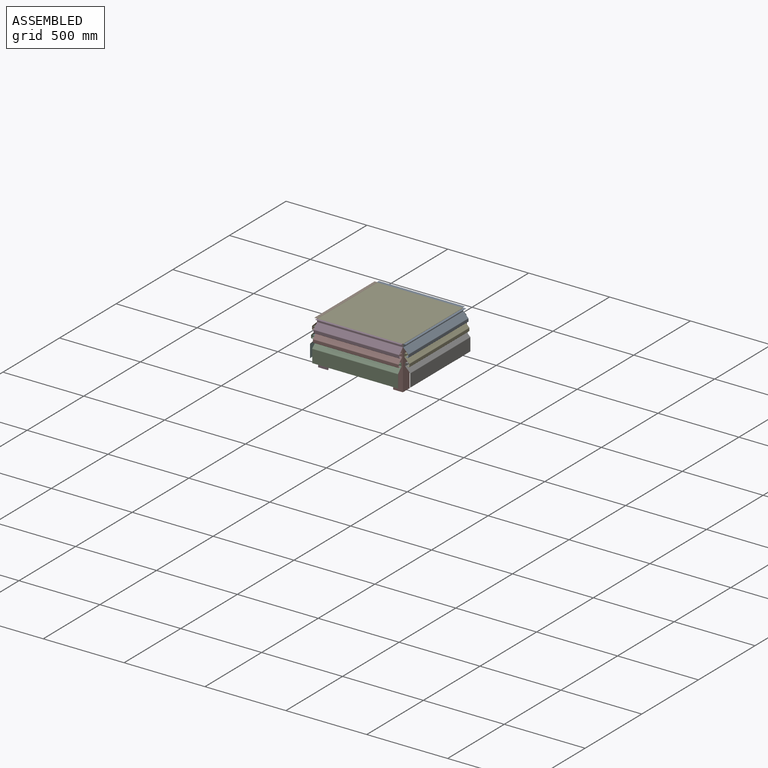
[diagram: assembled view]
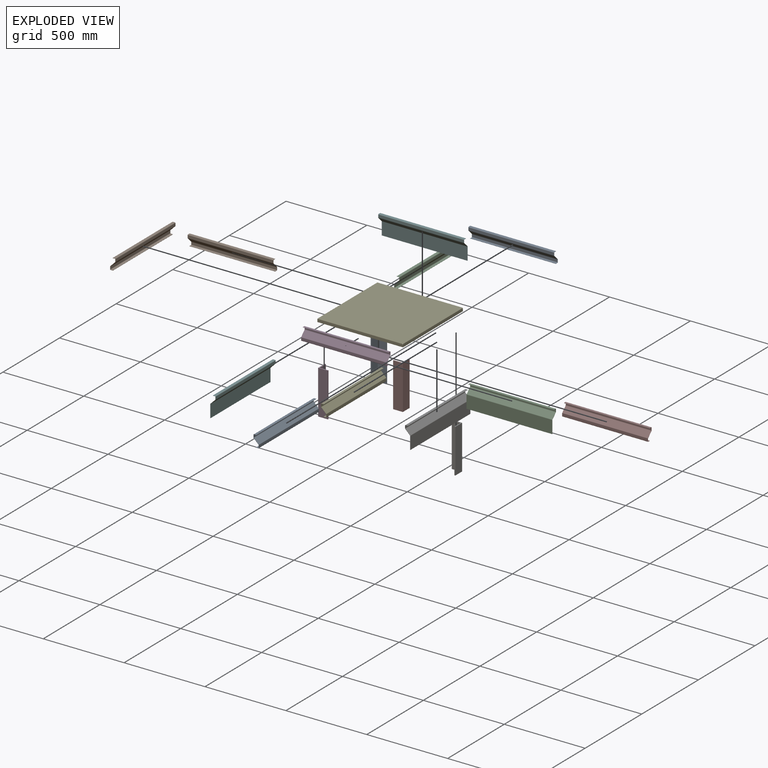
[diagram: exploded view]
GUIDED TOUR — MATED ASSEMBLY (Onshape document 658f09e600768cc6bc84b2b8, AutoMate assembly 658f09e600768cc6bc84b2b8_647c08d7fecc68a0881a63f9_3ef3a8aac3f7b8f3e4b5d0a6_default)

This assembly has 17 components, labeled P0..P16 below (a component is one placed occurrence of a part; the same part can appear more than once), held together by 14 mates. A mate is a constraint between two components; its type names the relative motion it leaves free:
  FASTENED — locks the two components together rigidly (no relative motion).
Axis/direction vectors are unit vectors and 'through' points are millimeter coordinates, both in the assembly's world frame.

MATES
  1. FASTENED "Fastened 6": P16 <-> P4, direction (0.000, 0.000, 1.000) through (581.29, -165.17, 362.12) mm
  2. FASTENED "Fastened 3": P11 <-> P4, direction (0.000, 0.000, 1.000) through (581.29, -688.67, 362.12) mm
  3. FASTENED "Fastened 2": P14 <-> P12, direction (0.000, 1.000, 0.000) through (1122.48, -426.55, 241.18) mm
  4. FASTENED "Fastened 1": P0 <-> P9, direction (1.000, 0.000, 0.000) through (840.89, -146.36, 292.42) mm
  5. FASTENED "Fastened 2": P5 <-> P10, direction (0.000, -1.000, 0.000) through (564.47, -426.92, 241.56) mm
  6. FASTENED "Fastened 7": P4 <-> P1, direction (-1.000, 0.000, 0.000) through (578.04, -426.92, 360.12) mm
  7. FASTENED "Fastened 2": P2 <-> P15, direction (1.000, 0.000, 0.000) through (843.04, -705.49, 241.56) mm
  8. FASTENED "Fastened 4": P7 <-> P4, direction (0.000, 0.000, 1.000) through (1104.79, -688.67, 362.12) mm
  9. FASTENED "Fastened 1": P8 <-> P12, direction (0.000, -1.000, 0.000) through (1124.61, -426.55, 292.05) mm
  10. FASTENED "Fastened 2": P13 <-> P9, direction (-1.000, 0.000, 0.000) through (840.89, -148.50, 241.56) mm
  11. FASTENED "Fastened 8": P3 <-> P4, direction (0.000, 1.000, 0.000) through (843.04, -691.92, 360.12) mm
  12. FASTENED "Fastened 1": P3 <-> P15, direction (-1.000, 0.000, 0.000) through (843.04, -707.63, 292.43) mm
  13. FASTENED "Fastened 5": P6 <-> P4, direction (0.000, 0.000, 1.000) through (1104.79, -165.17, 362.12) mm
  14. FASTENED "Fastened 1": P1 <-> P10, direction (0.000, 1.000, 0.000) through (562.33, -426.92, 292.43) mm

ASSEMBLY ORDER
  1. P4 — the base component [order verified]
  2. P7 [order verified]
  3. P16 [order verified]
  4. P11 [order verified]
  5. P6 [order verified]
  6. P13 [order verified]
  7. P9 [order verified]
  8. P0 [order verified]
  9. P14 [order verified]
  10. P12 [order verified]
  11. P8 [order verified]
  12. P2 [order verified]
  13. P15 [order verified]
  14. P3 [order verified]
  15. P5 [order verified]
  16. P10 [order verified]
  17. P1 [order verified]
Order-tag legend:
  [order verified] — this step's position reverses a verified removal order: the component was checked to insert without passing through the ones already placed.

Of the 17 components, 4 carry the full construction recipe — the FeatureScript program that regenerates the part's solid from scratch; the rest are supplied as boundary geometry only.
Because this assembly has more than 12 components, the tour below covers the 12 most significant ones individually (every recipe-attached component first, then the largest by part volume), in assembly order; the remaining 5 are summarized together in a grouped section at the end.
Each toured component is shown spotlighted twice — in the assembled view, then in the exploded view, where a leader line traces a displaced component back to its assembled socket (saturated green if recipe-attached, orange if geometry-only; every other component desaturated gray) — followed by its recipe or geometry summary and the mates that hold it.
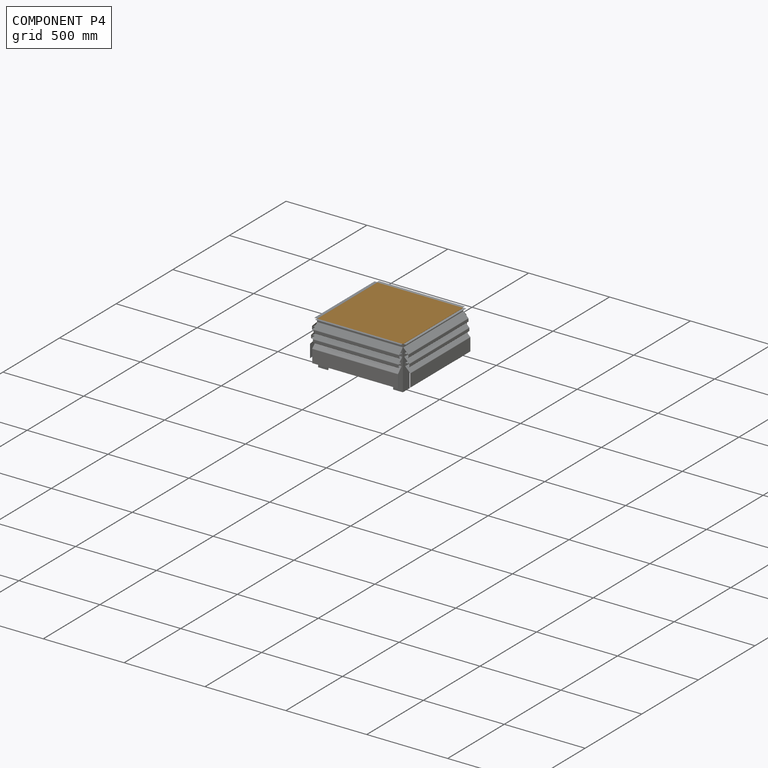
[diagram: component P4 — assembled]
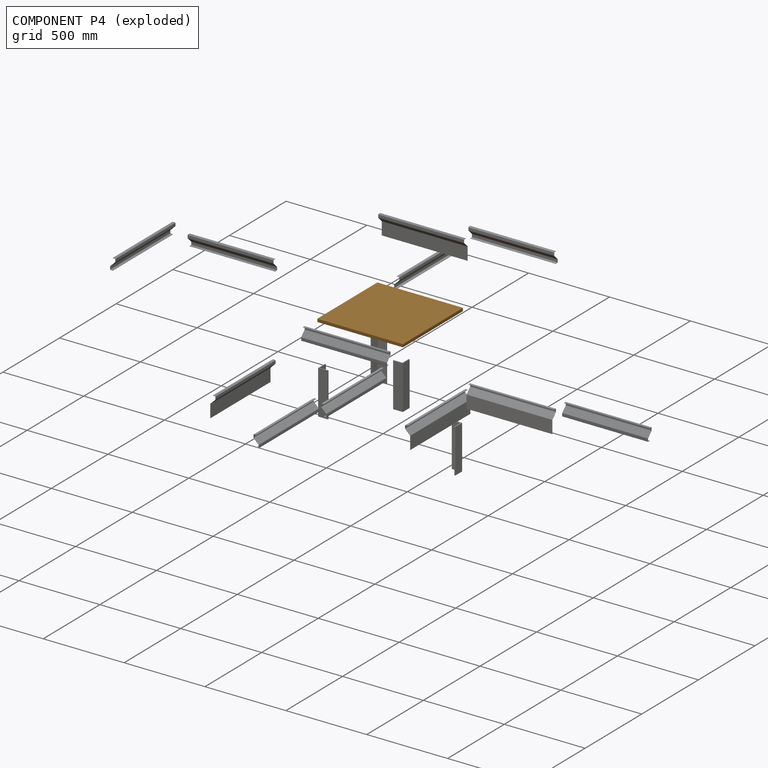
[diagram: component P4 — exploded]
COMPONENT P4 — geometry summary (no construction recipe available for this part):
  bounding box: 530.0 x 530.0 x 20.0 mm
  B-rep topology: 1 solid, 46 faces, 200 edges
  volume: 397533 mm^3 (7% of its bounding box)
  symmetry: 4-fold rotationally symmetric about the z axis; mirror-symmetric across its x mid-plane, y mid-plane
Held by: FASTENED mate "Fastened 6" to P16; FASTENED mate "Fastened 3" to P11; FASTENED mate "Fastened 7" to P1; FASTENED mate "Fastened 4" to P7; FASTENED mate "Fastened 8" to P3; FASTENED mate "Fastened 5" to P6.
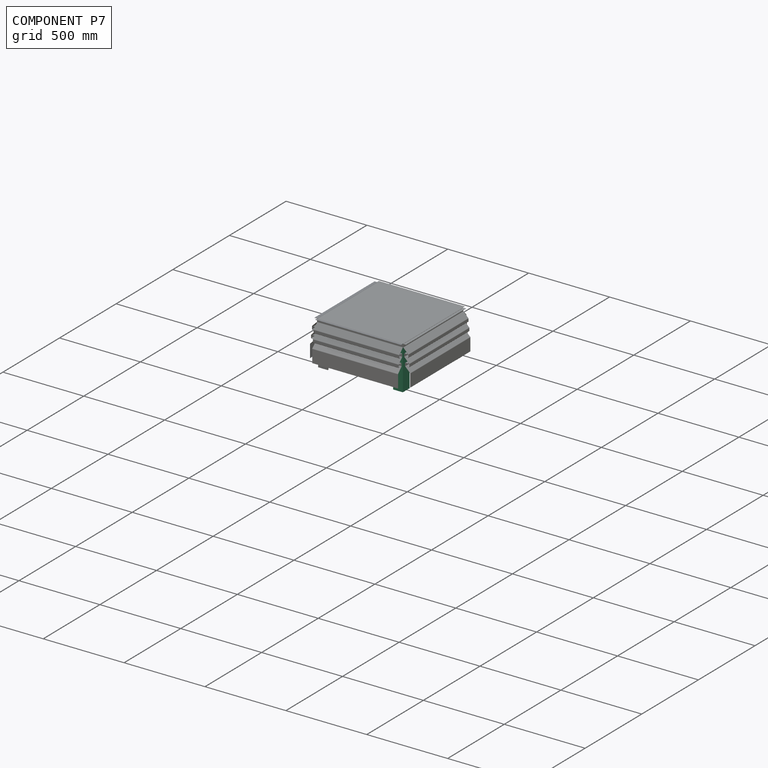
[diagram: component P7 — assembled]
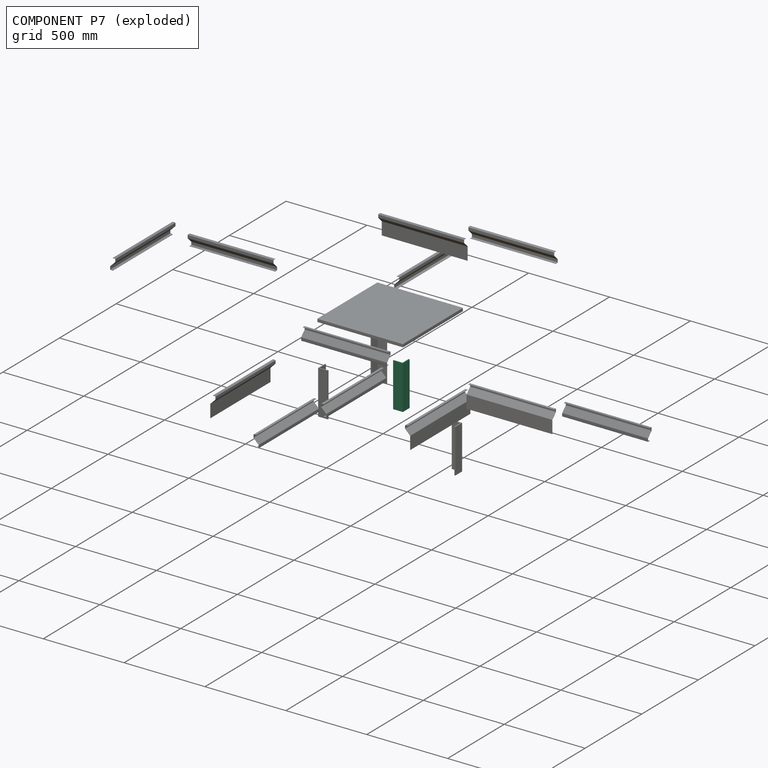
[diagram: component P7 — exploded]
COMPONENT P7 — same part as P6 (CADFS 00991087); its construction recipe is shown at P6.
Held by: FASTENED mate "Fastened 4" to P4.
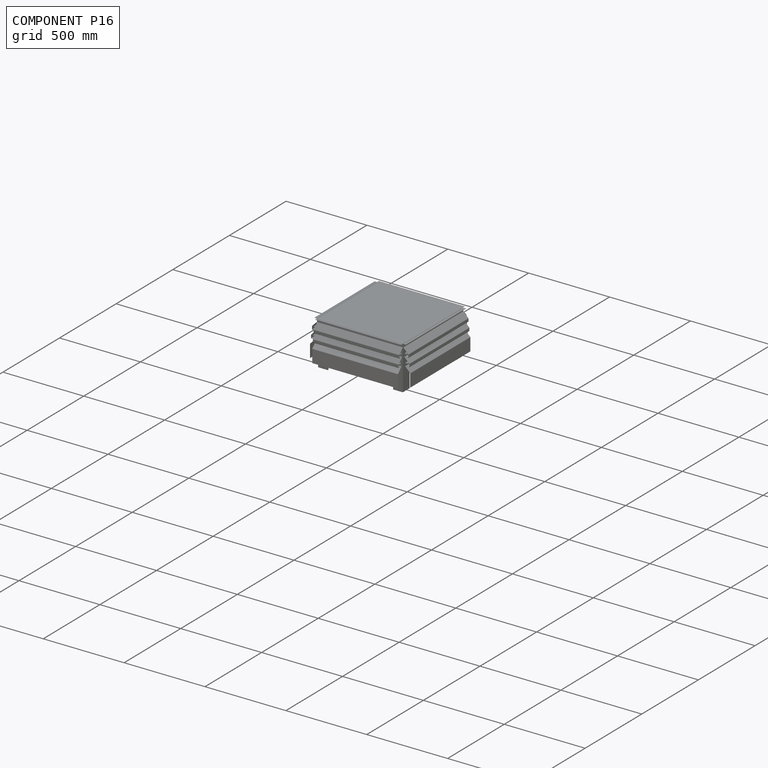
[diagram: component P16 — assembled]
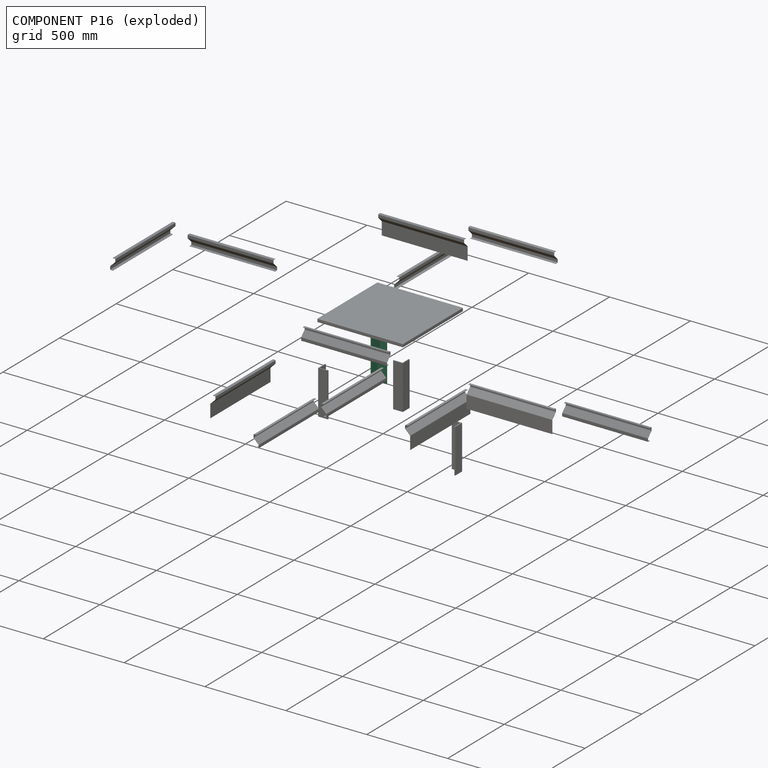
[diagram: component P16 — exploded]
COMPONENT P16 — same part as P6 (CADFS 00991087); its construction recipe is shown at P6.
Held by: FASTENED mate "Fastened 6" to P4.
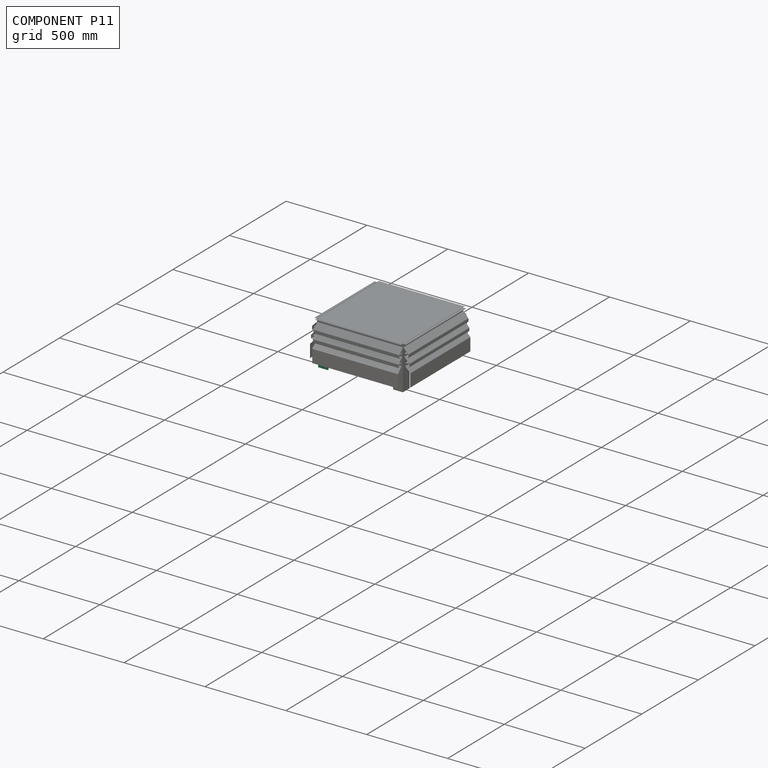
[diagram: component P11 — assembled]
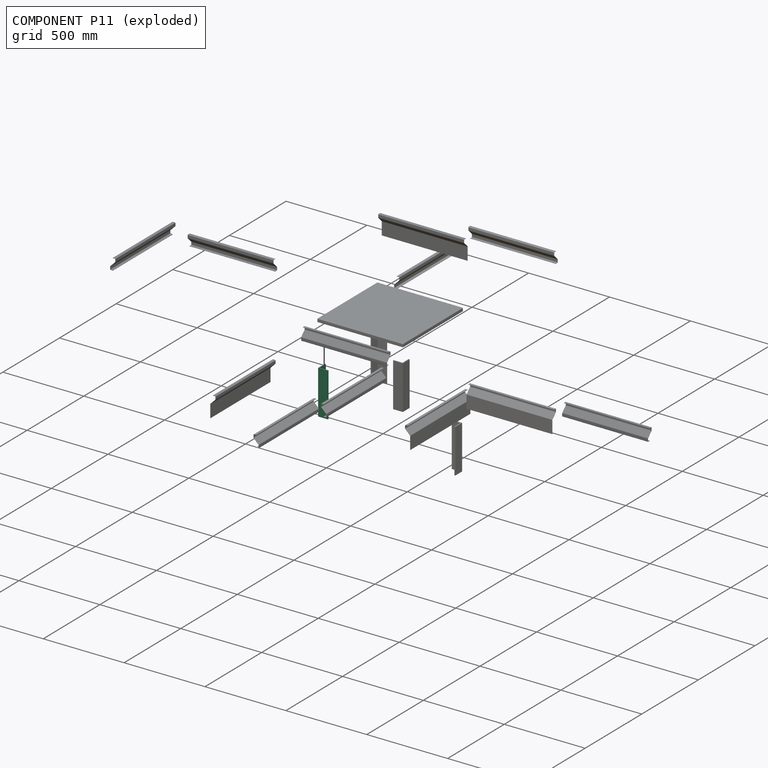
[diagram: component P11 — exploded]
COMPONENT P11 — same part as P6 (CADFS 00991087); its construction recipe is shown at P6.
Held by: FASTENED mate "Fastened 3" to P4.
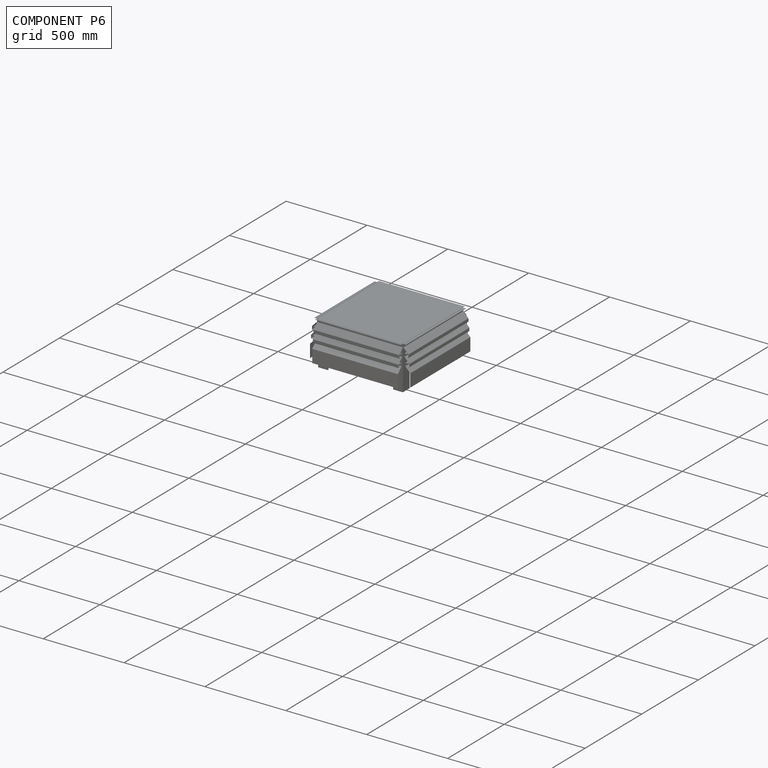
[diagram: component P6 — assembled]
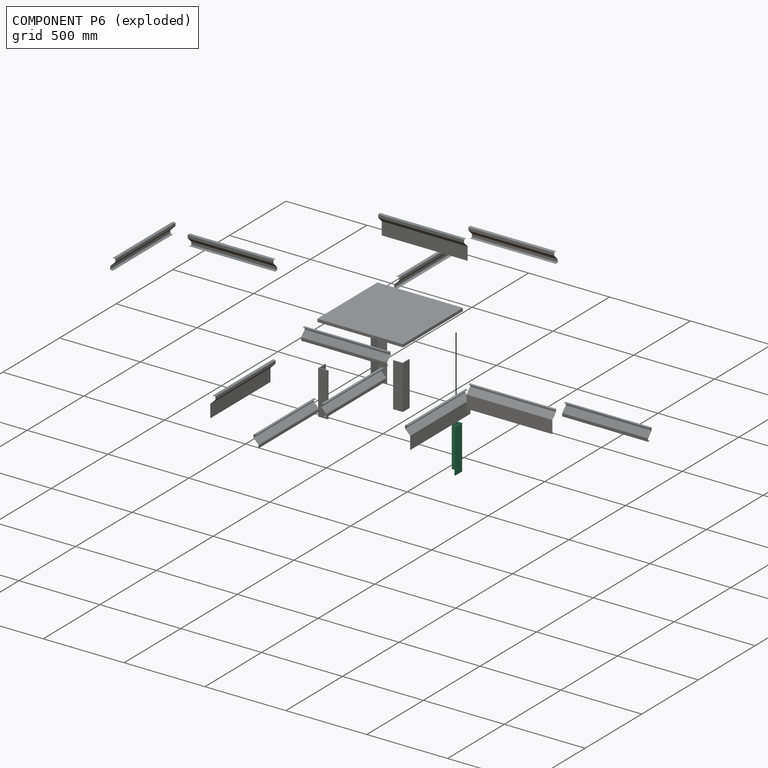
[diagram: component P6 — exploded]
COMPONENT P6 — recipe-attached (CADFS 00991087, mesh-verified: the recipe's output STEP matches this component's geometry to below the mesh-comparison resolution (tessellation chordal tolerance ~0.427 mm)).
Held by: FASTENED mate "Fastened 5" to P4.
Construction recipe (FeatureScript — the CAD program that rebuilds this solid; sketch coordinates are in the units given by the * unit suffixes, e.g. mm):

FeatureScript 1511;
import(path : "onshape/std/geometry.fs", version : "1511.0");
import(path : "onshape/std/common.fs", version : "1511.0");
const mm = millimeter;
const VERTEX = EntityType.VERTEX;
const EDGE = EntityType.EDGE;
const FACE = EntityType.FACE;
const BODY = EntityType.BODY;
function v(x, y){return vector(x, y);}
function OD(order){return orderDisambiguation(order);}
function OSD(set){return originalSetDisambiguation(set);}
function TD(topology){return topologyDisambiguation(topology);}
function TDD(query){return trueDependencyDisambiguation(query);}
function sQuery(a, b, c) {return sketchEntityQuery(a, b, c);}

annotation { "Feature Type Name" : "Feature", "Feature Type Description" : "" }
export const myFeature = defineFeature(function(context is Context, id is Id, definition is map)
    precondition{}
    {
        {
            var Q0;
            Q0=qCreatedBy(makeId("Top.planeOp"),FACE);
            var sketch = newSketch(context, id + "F0", { "sketchPlane" : qUnion([Q0])});
            skLineSegment(sketch, "E0", {"start": v(0, 0) * mm, "end": v(0, 60) * mm});
            skLineSegment(sketch, "E1", {"start": v(0, 0) * mm, "end": v(60, 0) * mm});
            skLineSegment(sketch, "E2.0", {"start": v(6, 6) * mm, "end": v(6, 60) * mm});
            skLineSegment(sketch, "E2.1", {"start": v(6, 6) * mm, "end": v(60, 6) * mm});
            skLineSegment(sketch, "E3", {"start": v(6, 60) * mm, "end": v(0, 60) * mm});
            skLineSegment(sketch, "E4", {"start": v(60, 0) * mm, "end": v(60, 6) * mm});
            skSolve(sketch);
        }
        {
            var Q0;
            Q0=makeQuery(id+"F0.imprint","IMPRINT",FACE,{"disambiguationData":[TD([[makeQuery(id+"F0.imprint","IMPRINT",EDGE,{"derivedFrom":sQuery(id+"F0.wireOp",EDGE,"E0")}),-1.0]])]});
            extrude(context, id + "F1", {"entities" : qUnion([Q0]), "depth" : 272 * mm, "offsetDistance" : 25 * mm});
        }
    });
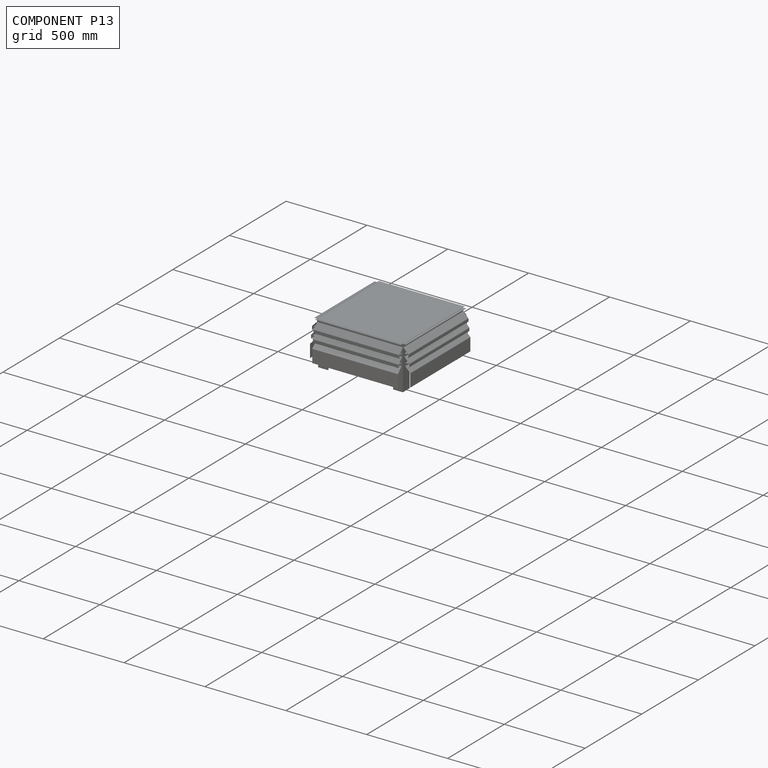
[diagram: component P13 — assembled]
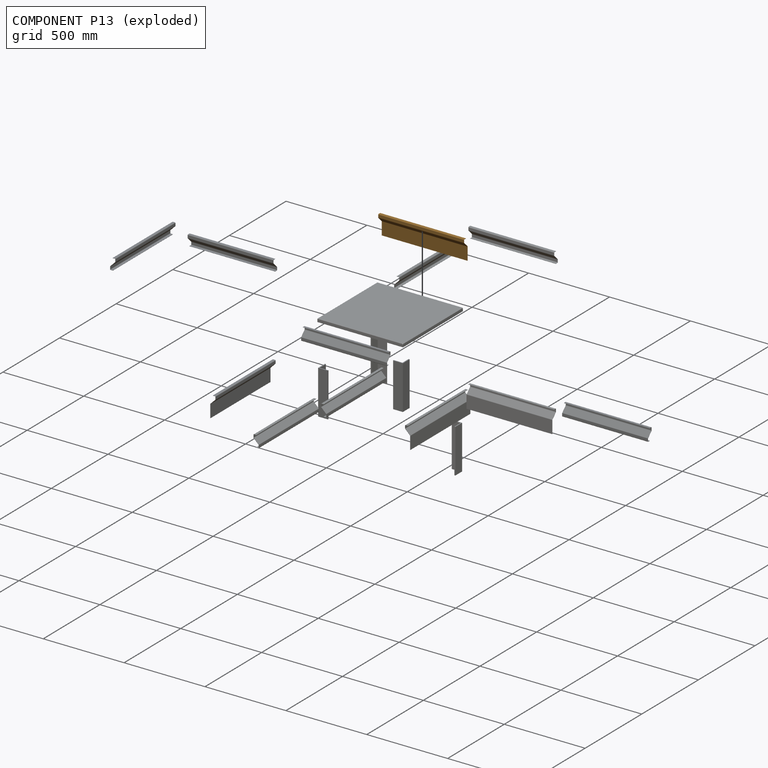
[diagram: component P13 — exploded]
COMPONENT P13 — geometry summary (no construction recipe available for this part):
  bounding box: 530.0 x 130.9 x 32.7 mm
  B-rep topology: 1 solid, 30 faces, 120 edges
  volume: 104915 mm^3 (5% of its bounding box)
  symmetry: mirror-symmetric across its y mid-plane
Held by: FASTENED mate "Fastened 2" to P9.
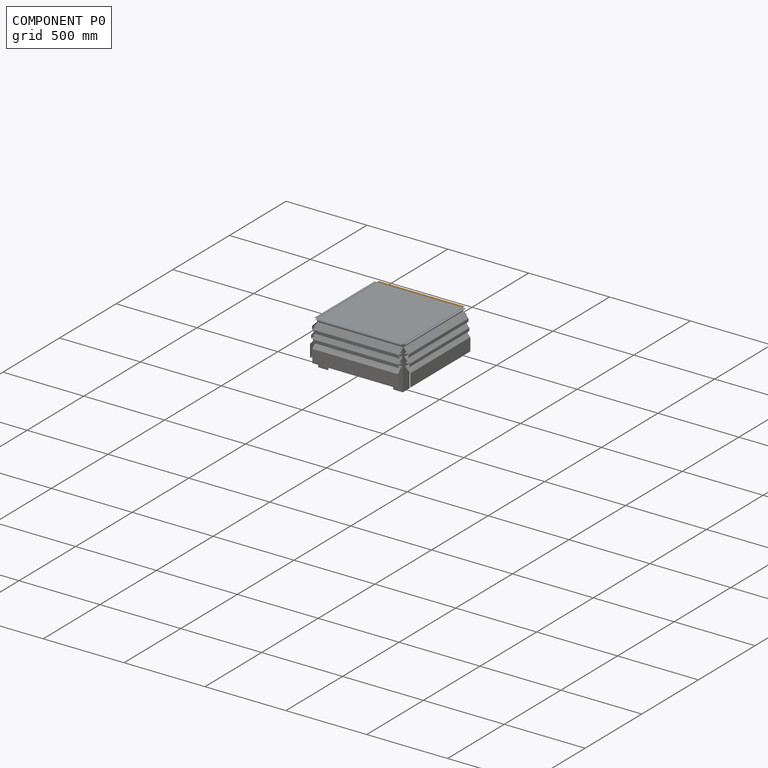
[diagram: component P0 — assembled]
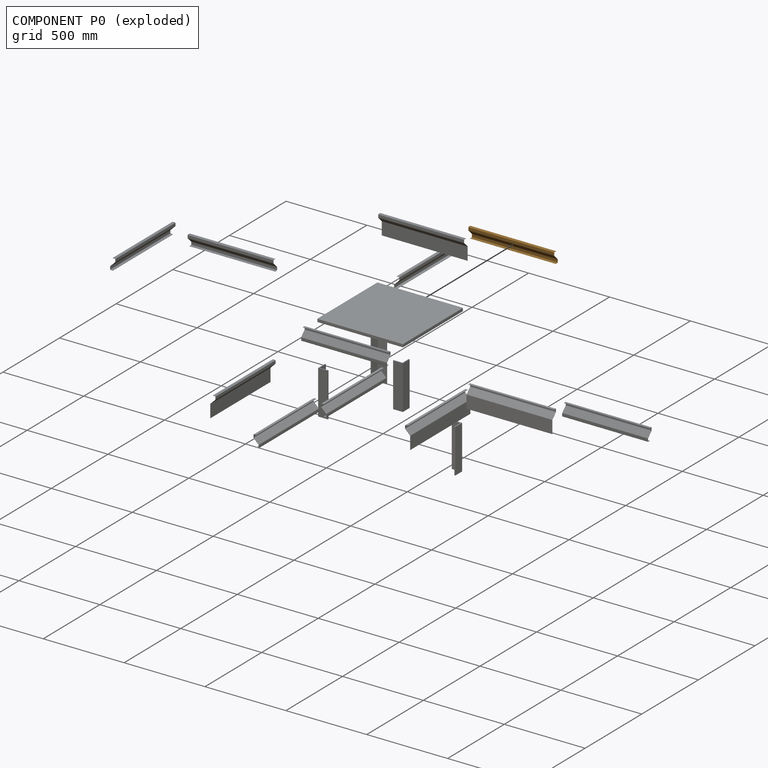
[diagram: component P0 — exploded]
COMPONENT P0 — geometry summary (no construction recipe available for this part):
  bounding box: 530.0 x 70.9 x 32.7 mm
  B-rep topology: 1 solid, 38 faces, 152 edges
  volume: 74853 mm^3 (6% of its bounding box)
  symmetry: 2-fold rotationally symmetric about the y axis; mirror-symmetric across its y mid-plane
Held by: FASTENED mate "Fastened 1" to P9.
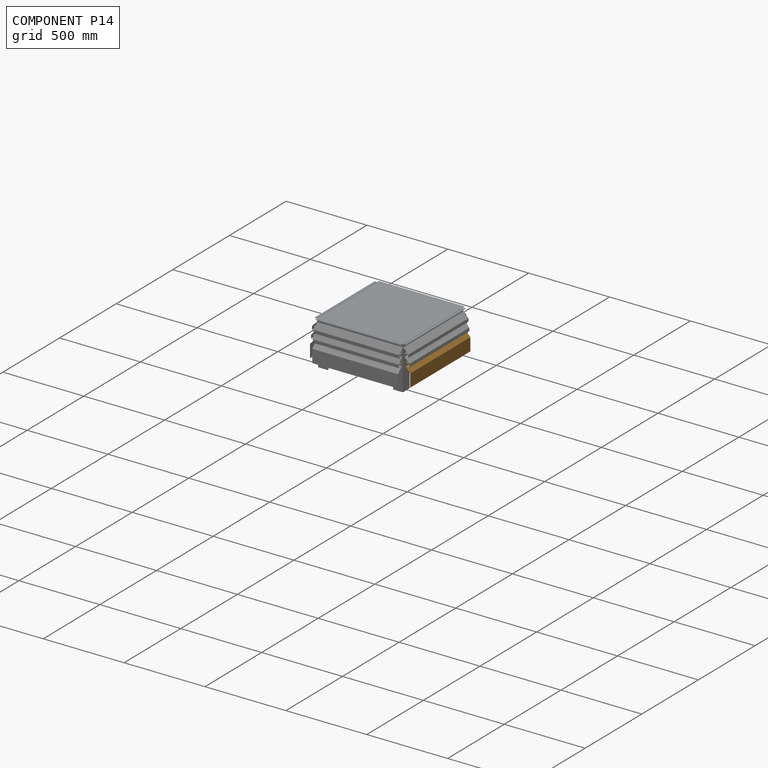
[diagram: component P14 — assembled]
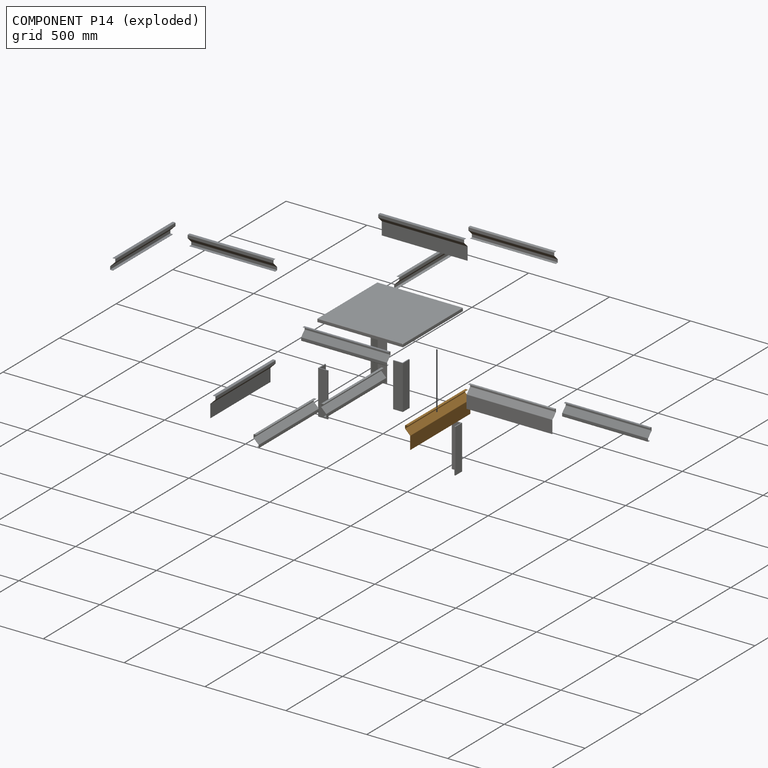
[diagram: component P14 — exploded]
COMPONENT P14 — geometry summary (no construction recipe available for this part):
  bounding box: 530.0 x 130.9 x 32.7 mm
  B-rep topology: 1 solid, 30 faces, 120 edges
  volume: 104915 mm^3 (5% of its bounding box)
  symmetry: mirror-symmetric across its y mid-plane
Held by: FASTENED mate "Fastened 2" to P12.
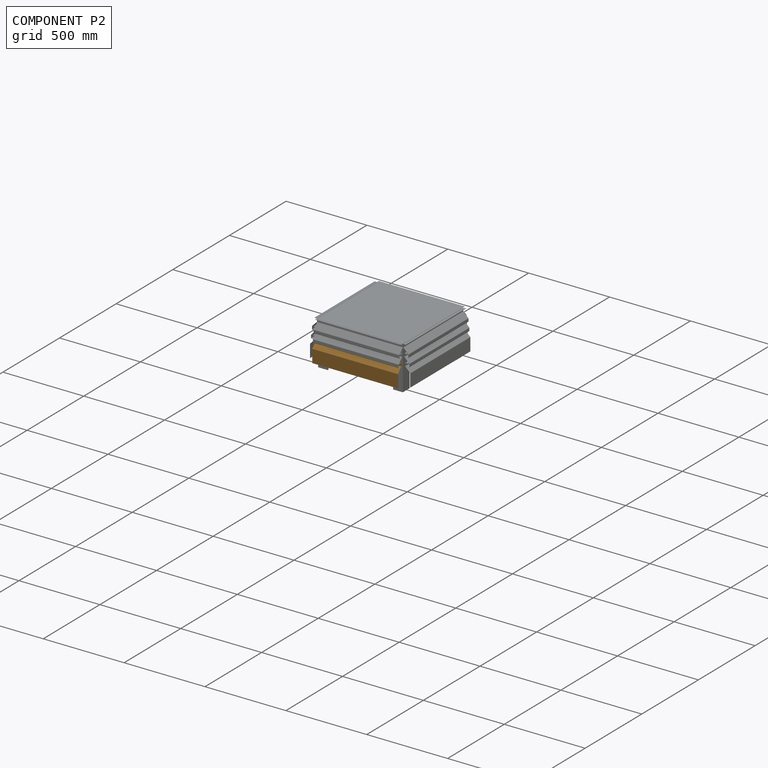
[diagram: component P2 — assembled]
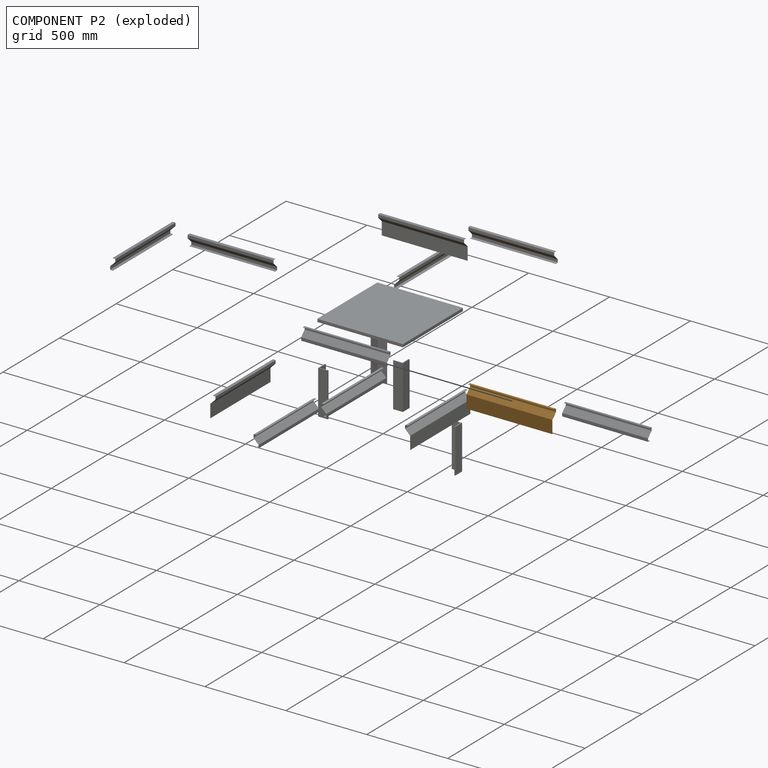
[diagram: component P2 — exploded]
COMPONENT P2 — geometry summary (no construction recipe available for this part):
  bounding box: 530.0 x 130.9 x 32.7 mm
  B-rep topology: 1 solid, 30 faces, 120 edges
  volume: 104915 mm^3 (5% of its bounding box)
  symmetry: mirror-symmetric across its y mid-plane
Held by: FASTENED mate "Fastened 2" to P15.
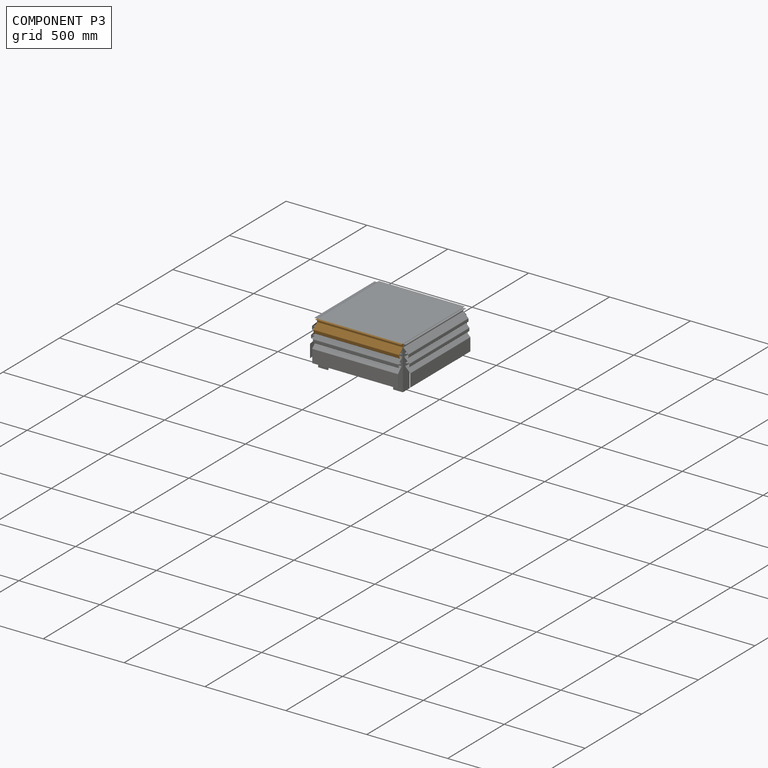
[diagram: component P3 — assembled]
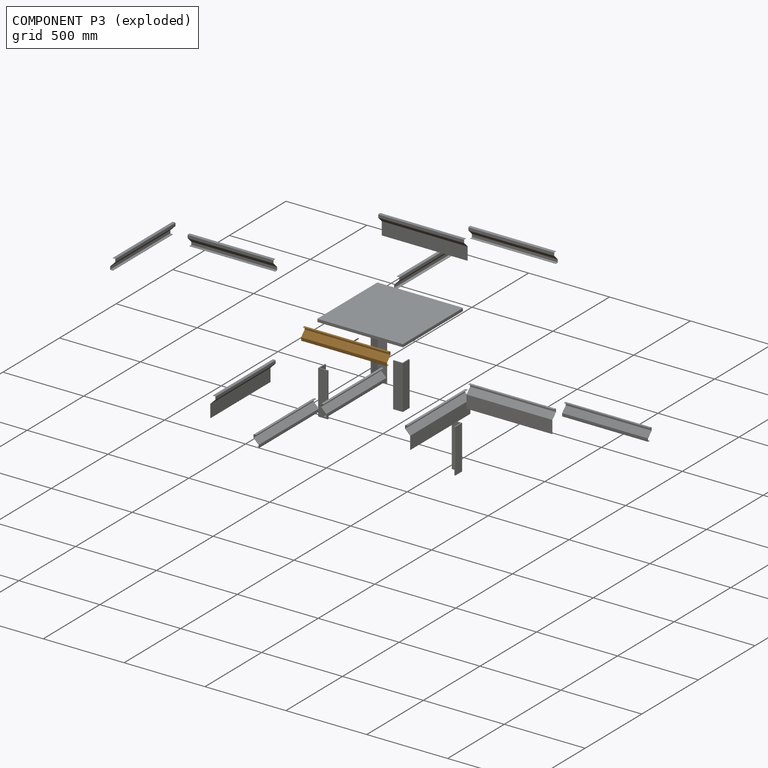
[diagram: component P3 — exploded]
COMPONENT P3 — geometry summary (no construction recipe available for this part):
  bounding box: 530.0 x 70.9 x 32.7 mm
  B-rep topology: 1 solid, 38 faces, 152 edges
  volume: 74853 mm^3 (6% of its bounding box)
  symmetry: 2-fold rotationally symmetric about the y axis; mirror-symmetric across its y mid-plane
Held by: FASTENED mate "Fastened 8" to P4; FASTENED mate "Fastened 1" to P15.
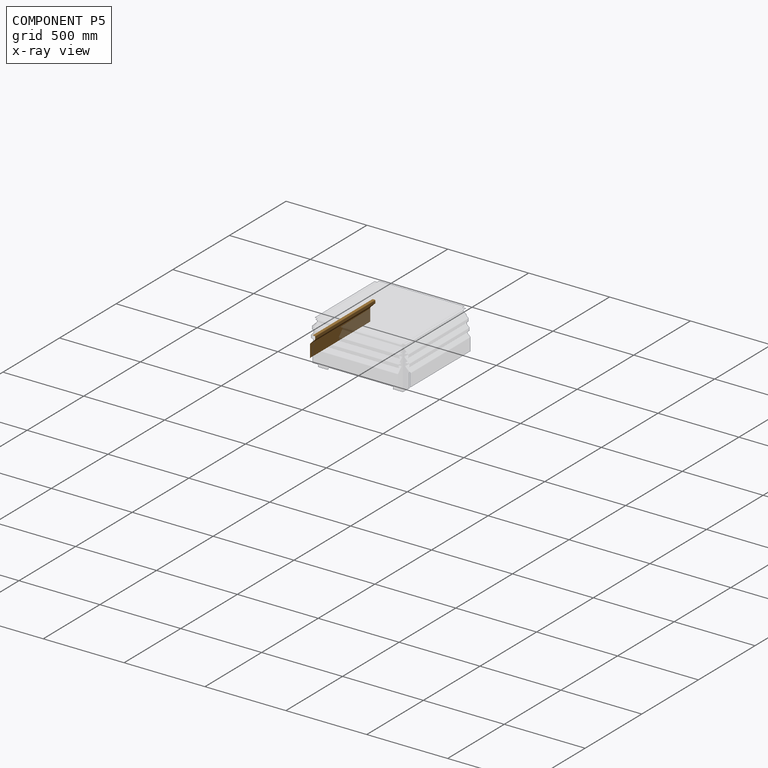
[diagram: component P5 — x-ray view]
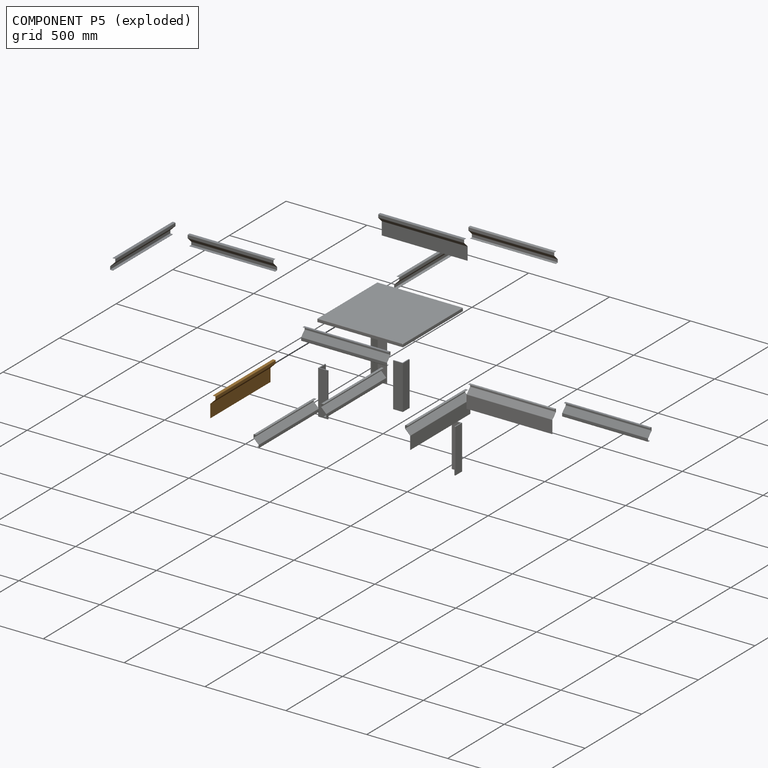
[diagram: component P5 — exploded]
COMPONENT P5 — geometry summary (no construction recipe available for this part):
  bounding box: 530.0 x 130.9 x 32.7 mm
  B-rep topology: 1 solid, 30 faces, 120 edges
  volume: 104915 mm^3 (5% of its bounding box)
  symmetry: mirror-symmetric across its y mid-plane
Held by: FASTENED mate "Fastened 2" to P10.
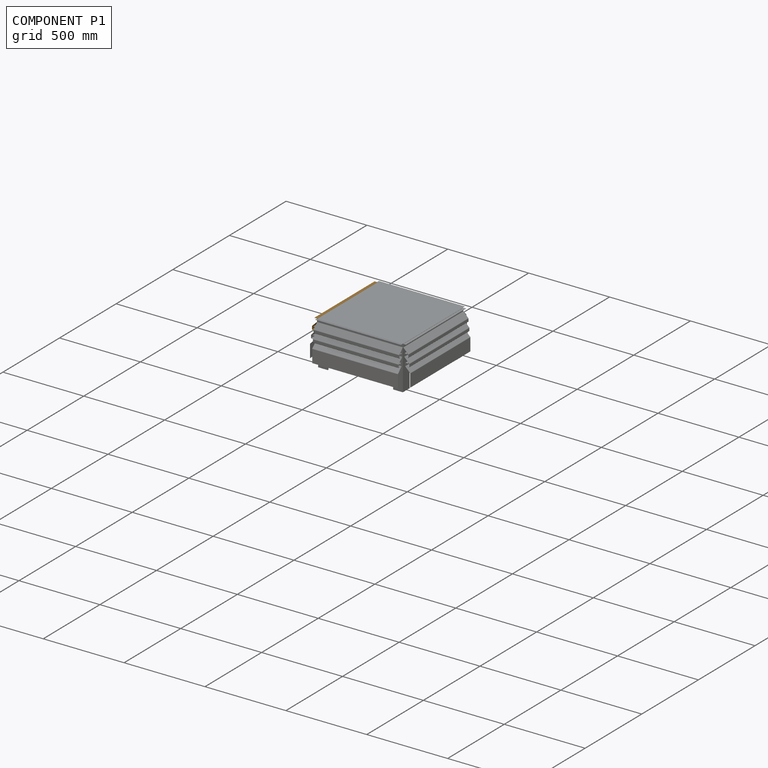
[diagram: component P1 — assembled]
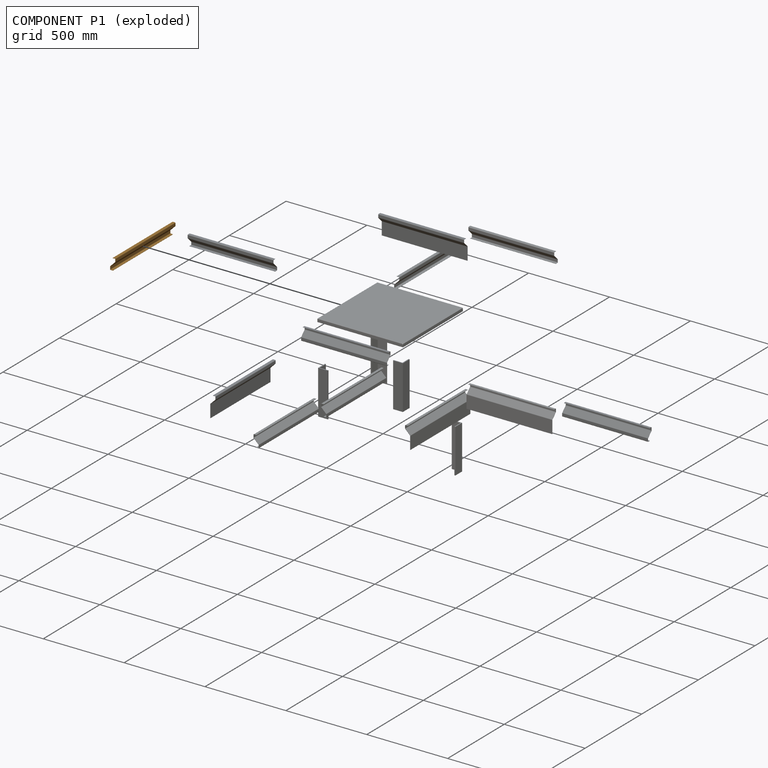
[diagram: component P1 — exploded]
COMPONENT P1 — geometry summary (no construction recipe available for this part):
  bounding box: 530.0 x 70.9 x 32.7 mm
  B-rep topology: 1 solid, 38 faces, 152 edges
  volume: 74853 mm^3 (6% of its bounding box)
  symmetry: 2-fold rotationally symmetric about the y axis; mirror-symmetric across its y mid-plane
Held by: FASTENED mate "Fastened 7" to P4; FASTENED mate "Fastened 1" to P10.
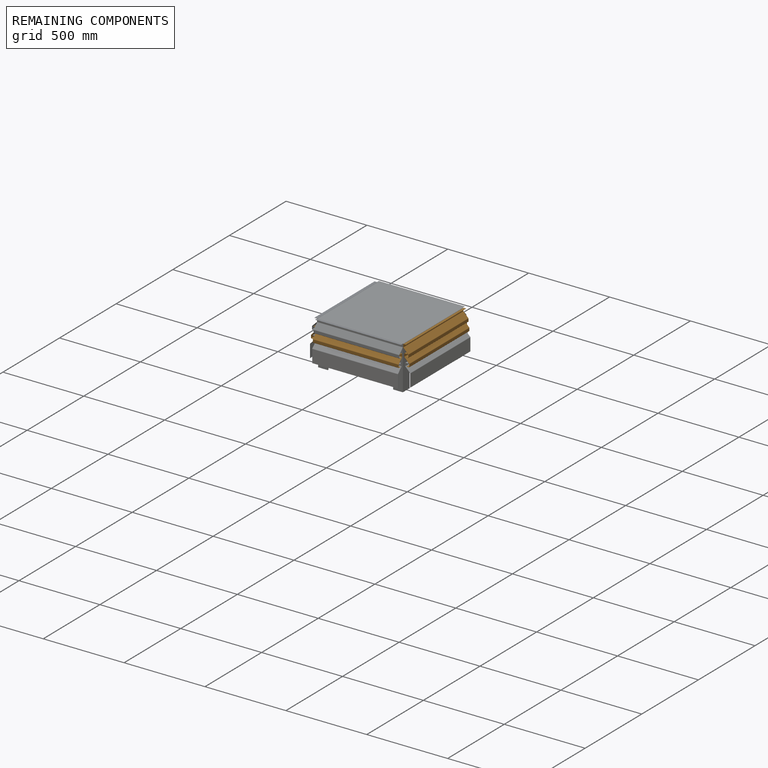
[diagram: remaining components — assembled]
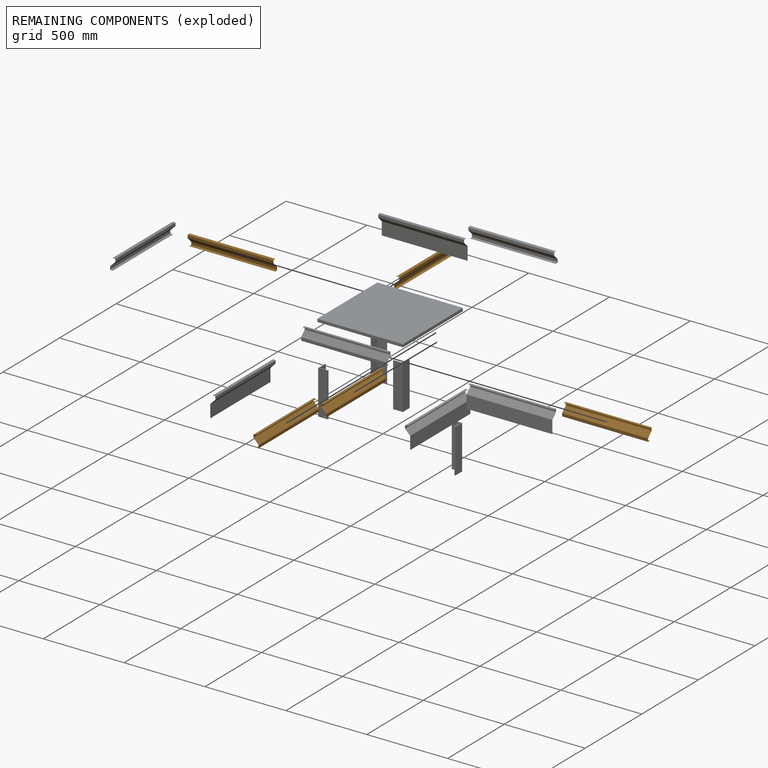
[diagram: remaining components — exploded]
REMAINING COMPONENTS (grouped) — the 5 components below fall outside the per-component tour by the significance rule stated above; both spotlight views highlight the whole group.
  P9: bounding box 530.0 x 70.9 x 32.7 mm, volume 74853 mm^3. Held by: FASTENED mate "Fastened 1" to P0; FASTENED mate "Fastened 2" to P13.
  P12: bounding box 530.0 x 70.9 x 32.7 mm, volume 74853 mm^3. Held by: FASTENED mate "Fastened 2" to P14; FASTENED mate "Fastened 1" to P8.
  P8: bounding box 530.0 x 70.9 x 32.7 mm, volume 74853 mm^3. Held by: FASTENED mate "Fastened 1" to P12.
  P15: bounding box 530.0 x 70.9 x 32.7 mm, volume 74853 mm^3. Held by: FASTENED mate "Fastened 2" to P2; FASTENED mate "Fastened 1" to P3.
  P10: bounding box 530.0 x 70.9 x 32.7 mm, volume 74853 mm^3. Held by: FASTENED mate "Fastened 2" to P5; FASTENED mate "Fastened 1" to P1.
PROVENANCE & LICENSES
Assembly (occurrences, transforms, mates, per-part STEP geometry): AutoMate dataset, Zenodo record 7776208, CC0.
Construction recipes: CADFS (HuggingFace VladPyatov/CADFS, CC-BY-4.0, layered over the ABC dataset), FeatureScript reconstruction programs keyed by ABC model id.
Join: ABC meta listings map ABC model id -> Onshape documentId; within a shared document, parts are matched by geometric signature (bounding-box dims + volume at 0.1% relative tolerance, exact B-rep face/solid counts).
Verification: 4 of this assembly's 17 components carry a recipe attachment, and every attachment is mesh-verified: the CADFS STEP and the AutoMate member STEP were compared as meshes in their shared local frame (symmetric sampled-point-to-mesh distance); worst across the 4 attachments: below the mesh-comparison resolution (tessellation chordal tolerance ~0.427 mm) on a 285 mm part.
Renders: orthographic iso camera (az 35 / el 25); the floor grid conveys scale (grid pitch printed in each image; no ruler). In the exploded view each component is displaced by its stored offset vector: the offsets alone carry the explosion direction (mate normal/axis signs are not orientation cues and do not encode it), and separation distances are assigned per mate-chain, not proportionally to assembly-order depth.
